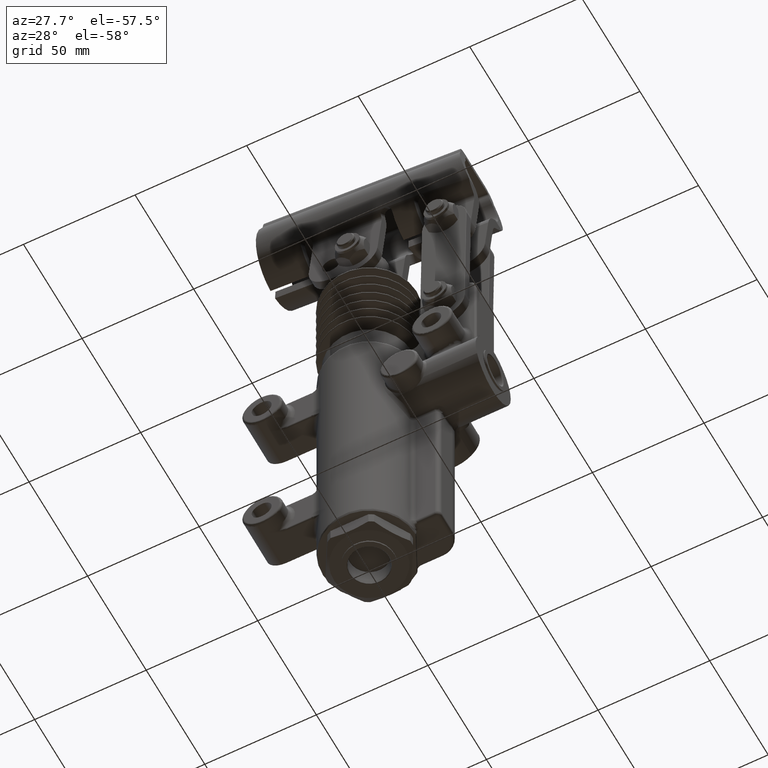
[diagram: clean part render]
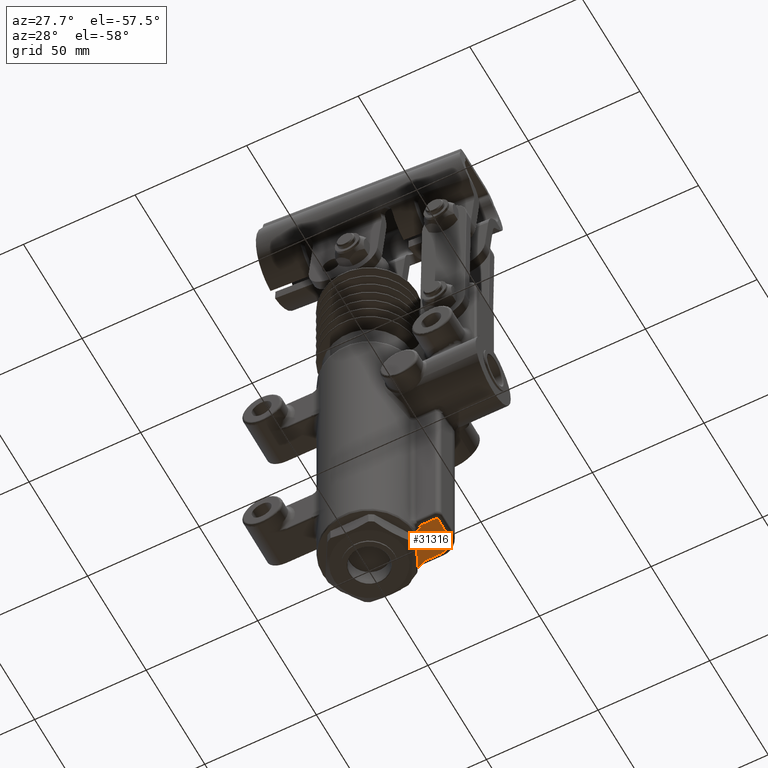
[diagram: same view with one face highlighted and labeled with its STEP entity id]
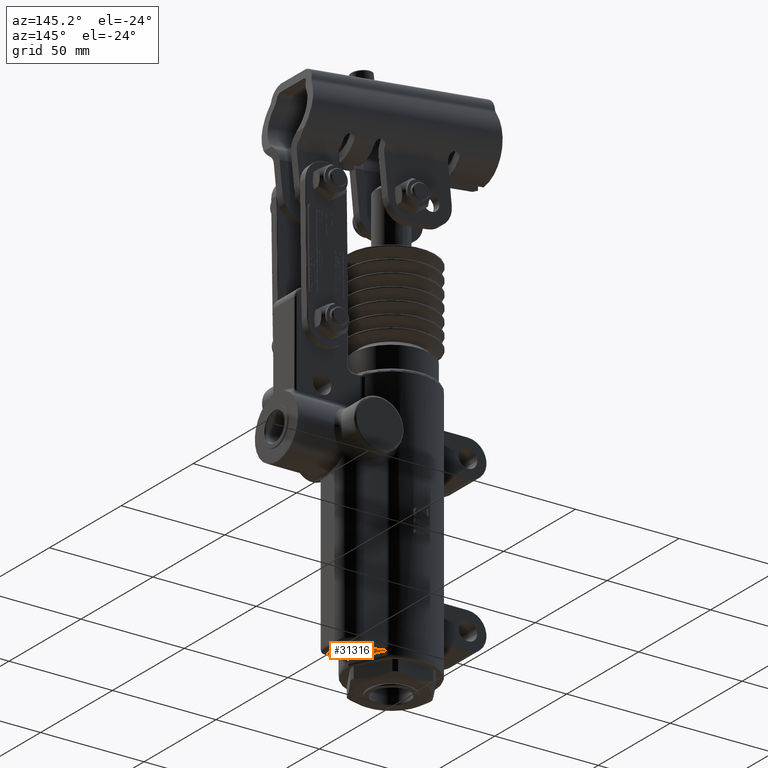
[diagram: same view with one face highlighted and labeled with its STEP entity id]
A machine part, auxiliary view. The second image highlights one B-rep face of the part: STEP entity #31316.
A second angle (auxiliary view) of the same face is appended — the face is thin or edge-on in the first view.
In plain terms, the highlighted planar face has unit normal (0, 0, 1).
Its self-contained STEP definition (entity closure, byte-faithful):
#27945=CARTESIAN_POINT('',(21.0,8.719301E-015,3.999999999999999));
#27946=VERTEX_POINT('',#27945);
#27953=CARTESIAN_POINT('',(23.000000000000007,8.719301E-015,3.999999999999999));
#27954=VERTEX_POINT('',#27953);
#27955=CARTESIAN_POINT('',(23.000000000000007,8.719301E-015,3.999999999999999));
#27956=DIRECTION('',(-1.0,0.0,0.0));
#27957=VECTOR('',#27956,2.000000000000004);
#27958=LINE('',#27955,#27957);
#27959=EDGE_CURVE('',#27954,#27946,#27958,.T.);
#28106=CARTESIAN_POINT('',(12.532648338027244,16.8503034285838,3.999999999999999));
#28107=VERTEX_POINT('',#28106);
#28114=CARTESIAN_POINT('',(13.136650874622982,16.12225491943969,3.999999999999999));
#28115=VERTEX_POINT('',#28114);
#28116=CARTESIAN_POINT('',(11.33906278202465,15.245512625861535,3.999999999999999));
#28117=DIRECTION('',(0.0,0.0,1.0));
#28118=DIRECTION('',(0.769625494467583,0.638495574194158,0.0));
#28119=AXIS2_PLACEMENT_3D('',#28116,#28117,#28118);
#28120=CIRCLE('',#28119,2.0);
#28121=EDGE_CURVE('',#28107,#28115,#28120,.F.);
#28210=CARTESIAN_POINT('',(21.0,8.719301E-015,3.999999999999999));
#28211=DIRECTION('',(-0.438371146789078,0.898794046299167,0.0));
#28212=VECTOR('',#28211,17.937652108204254);
#28213=LINE('',#28210,#28212);
#28214=EDGE_CURVE('',#27946,#28115,#28213,.T.);
#28283=CARTESIAN_POINT('',(17.853571071357123,14.500000000000007,3.999999999999998));
#28284=VERTEX_POINT('',#28283);
#28285=CARTESIAN_POINT('',(13.113893586496628,16.402005822521911,4.000000000004573));
#28286=VERTEX_POINT('',#28285);
#28287=CARTESIAN_POINT('',(17.85357107135712,14.500000000000007,3.999999999999998));
#28288=CARTESIAN_POINT('',(17.850058357526851,14.501116131557652,3.999999999999998));
#28289=CARTESIAN_POINT('',(17.846545485775959,14.502231794266162,3.999999999999998));
#28290=CARTESIAN_POINT('',(17.150604141368358,14.723156227992895,3.999999999999998));
#28291=CARTESIAN_POINT('',(16.434664018680412,14.930522348949049,3.999999999999999));
#28292=CARTESIAN_POINT('',(15.205669126320153,15.333754632239833,3.999999999999999));
#28293=CARTESIAN_POINT('',(14.686811406082331,15.522445065765329,3.999999999999997));
#28294=CARTESIAN_POINT('',(13.835113832330983,15.918030609590311,3.999999999999997));
#28295=CARTESIAN_POINT('',(13.449367534216055,16.133784380642101,3.999999999999998));
#28296=CARTESIAN_POINT('',(13.113893586502661,16.402005822517086,3.999999999999998));
#28297=B_SPLINE_CURVE_WITH_KNOTS('',3,(#28287,#28288,#28289,#28290,#28291,#28292,#28293,#28294,#28295,#28296),.UNSPECIFIED.,.F.,.U.,(4,2,2,2,4),(-0.471958241687435,-0.471005090208386,-0.283135192793672,-0.128855329858067,0.0),.UNSPECIFIED.);
#28298=EDGE_CURVE('',#28284,#28286,#28297,.T.);
#28484=CARTESIAN_POINT('',(0.0,0.0,3.999999999999998));
#28485=DIRECTION('',(0.0,0.0,1.0));
#28486=DIRECTION('',(-1.0,0.0,0.0));
#28487=AXIS2_PLACEMENT_3D('',#28484,#28485,#28486);
#28488=CIRCLE('',#28487,21.0);
#28489=EDGE_CURVE('',#28286,#28107,#28488,.T.);
#31099=CARTESIAN_POINT('',(22.978250586152122,-0.999999999999995,3.999999999999999));
#31100=VERTEX_POINT('',#31099);
#31101=CARTESIAN_POINT('',(1.938654E-032,-5.139991E-031,3.999999999999999));
#31102=DIRECTION('',(7.569129E-032,2.825346E-032,-1.0));
#31103=DIRECTION('',(0.936860273237038,0.349703915377312,8.079250E-032));
#31104=AXIS2_PLACEMENT_3D('',#31101,#31102,#31103);
#31105=CIRCLE('',#31104,23.000000000000004);
#31106=EDGE_CURVE('',#27954,#31100,#31105,.T.);
#31253=CARTESIAN_POINT('',(31.0,-0.999999999999992,3.999999999999999));
#31254=VERTEX_POINT('',#31253);
#31255=CARTESIAN_POINT('',(22.978250586152122,-0.999999999999995,3.999999999999999));
#31256=DIRECTION('',(1.0,0.0,0.0));
#31257=VECTOR('',#31256,8.021749413847878);
#31258=LINE('',#31255,#31257);
#31259=EDGE_CURVE('',#31100,#31254,#31258,.T.);
#31279=CARTESIAN_POINT('',(15.690116396741278,6.416726569670131,3.999999999999999));
#31280=DIRECTION('',(0.0,0.0,1.0));
#31281=DIRECTION('',(1.0,0.0,0.0));
#31282=AXIS2_PLACEMENT_3D('',#31279,#31280,#31281);
#31283=PLANE('',#31282);
#31284=CARTESIAN_POINT('',(30.999999999999996,8.000000000000009,3.999999999999999));
#31285=VERTEX_POINT('',#31284);
#31286=CARTESIAN_POINT('',(31.0,-0.999999999999993,3.999999999999999));
#31287=DIRECTION('',(0.0,1.0,0.0));
#31288=VECTOR('',#31287,9.000000000000002);
#31289=LINE('',#31286,#31288);
#31290=EDGE_CURVE('',#31254,#31285,#31289,.T.);
#31291=ORIENTED_EDGE('',*,*,#31290,.F.);
#31292=ORIENTED_EDGE('',*,*,#31259,.F.);
#31293=ORIENTED_EDGE('',*,*,#31106,.F.);
#31294=ORIENTED_EDGE('',*,*,#27959,.T.);
#31295=ORIENTED_EDGE('',*,*,#28214,.T.);
#31296=ORIENTED_EDGE('',*,*,#28121,.F.);
#31297=ORIENTED_EDGE('',*,*,#28489,.F.);
#31298=ORIENTED_EDGE('',*,*,#28298,.F.);
#31299=CARTESIAN_POINT('',(24.499999999999993,14.500000000000009,3.999999999999999));
#31300=VERTEX_POINT('',#31299);
#31301=CARTESIAN_POINT('',(24.499999999999993,14.500000000000009,3.999999999999999));
#31302=DIRECTION('',(-1.0,0.0,0.0));
#31303=VECTOR('',#31302,6.646428928642873);
#31304=LINE('',#31301,#31303);
#31305=EDGE_CURVE('',#31300,#28284,#31304,.T.);
#31306=ORIENTED_EDGE('',*,*,#31305,.F.);
#31307=CARTESIAN_POINT('',(24.499999999999996,8.000000000000009,3.999999999999999));
#31308=DIRECTION('',(-1.236531E-031,-1.236531E-031,1.0));
#31309=DIRECTION('',(0.707106781186547,0.707106781186548,1.748719E-031));
#31310=AXIS2_PLACEMENT_3D('',#31307,#31308,#31309);
#31311=CIRCLE('',#31310,6.5);
#31312=EDGE_CURVE('',#31285,#31300,#31311,.T.);
#31313=ORIENTED_EDGE('',*,*,#31312,.F.);
#31314=EDGE_LOOP('',(#31291,#31292,#31293,#31294,#31295,#31296,#31297,#31298,#31306,#31313));
#31315=FACE_OUTER_BOUND('',#31314,.T.);
#31316=ADVANCED_FACE('',(#31315),#31283,.F.);